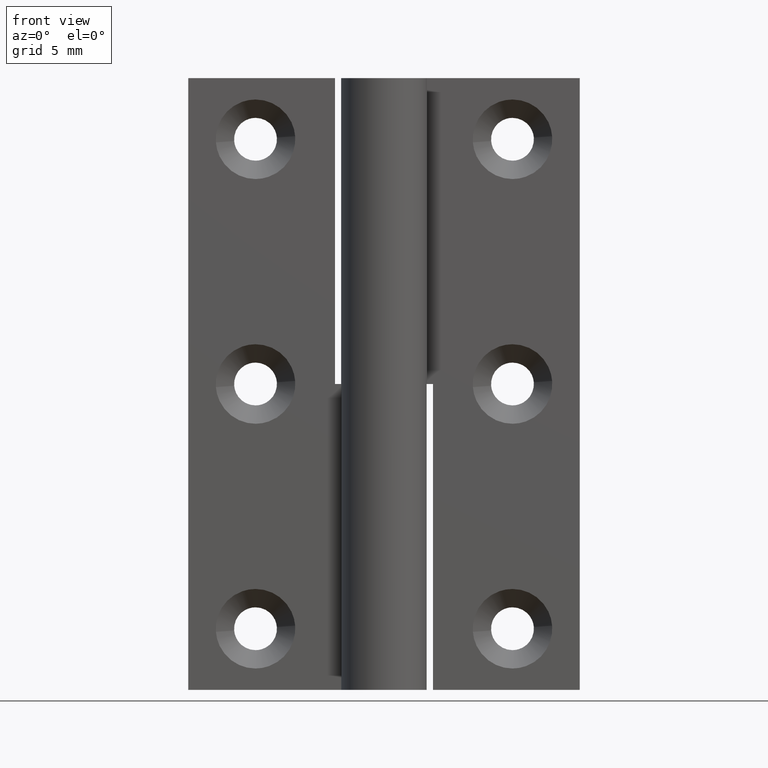
[diagram: clean part render]
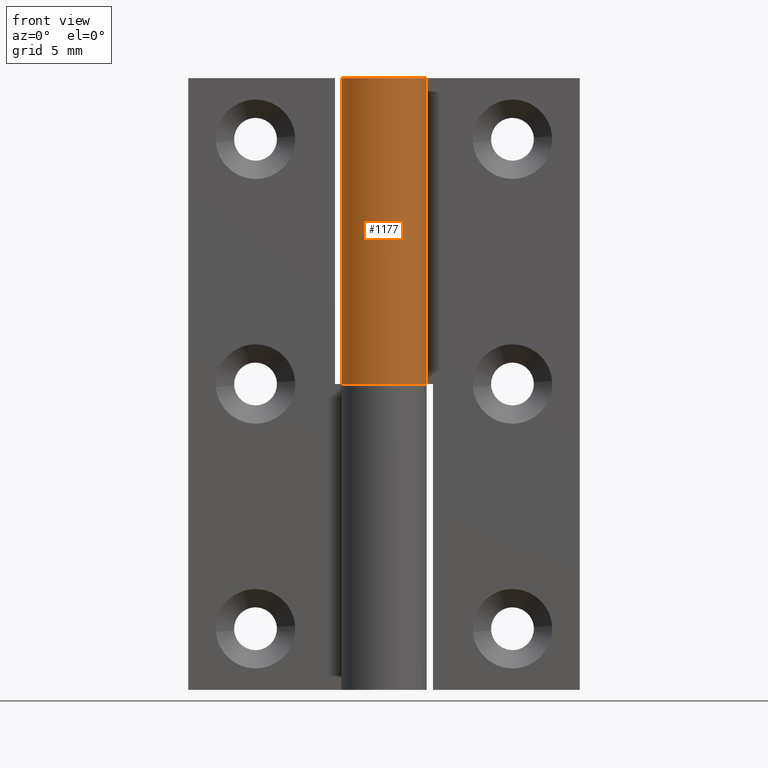
[diagram: same view with one face highlighted and labeled with its STEP entity id]
A machine part, front view. The second image highlights one B-rep face of the part: STEP entity #1177.
In plain terms, the highlighted face is a freeform B-spline surface patch.
Its self-contained STEP definition (entity closure, byte-faithful):
#901=CARTESIAN_POINT('',(2.906458325866725,1.950000000000000,25.0));
#902=VERTEX_POINT('',#901);
#903=CARTESIAN_POINT('',(0.0,3.499999999999950,25.0));
#904=VERTEX_POINT('',#903);
#905=CARTESIAN_POINT('',(2.906458325866724,1.950000000000000,25.0));
#906=CARTESIAN_POINT('',(4.428995672699893,-0.319328896485282,25.0));
#907=CARTESIAN_POINT('',(2.596662639363707,-2.346772919848170,25.0));
#908=CARTESIAN_POINT('',(0.764329606027518,-4.374216943211061,25.0));
#909=CARTESIAN_POINT('',(-1.646966909200061,-3.088284313336452,25.0));
#910=CARTESIAN_POINT('',(-4.058263424427639,-1.802351683461843,25.0));
#911=CARTESIAN_POINT('',(-3.395511382448716,0.848824158269078,25.0));
#912=CARTESIAN_POINT('',(-2.732759340469793,3.500000000000001,25.0));
#913=CARTESIAN_POINT('',(0.0,3.500000000000000,25.0));
#921=(BOUNDED_CURVE()B_SPLINE_CURVE(2,(#905,#906,#907,#908,#909,#910,#911,#912,#913),.UNSPECIFIED.,.F.,.U.)B_SPLINE_CURVE_WITH_KNOTS((3,2,2,2,3),(0.0,0.250000000000000,0.500000000000000,0.750000000000000,1.0),.UNSPECIFIED.)CURVE()GEOMETRIC_REPRESENTATION_ITEM()RATIONAL_B_SPLINE_CURVE((1.0,0.788200858942973,1.0,0.788200858942973,1.0,0.788200858942973,1.0,0.788200858942973,1.0))REPRESENTATION_ITEM(''));
#922=EDGE_CURVE('',#902,#904,#921,.T.);
#971=CARTESIAN_POINT('',(2.906458325866725,1.950000000000000,50.0));
#972=VERTEX_POINT('',#971);
#973=CARTESIAN_POINT('',(0.0,3.500000000000000,50.0));
#974=VERTEX_POINT('',#973);
#975=CARTESIAN_POINT('',(2.906458325866724,1.950000000000000,50.0));
#976=CARTESIAN_POINT('',(4.428995672699894,-0.319328896485281,50.0));
#977=CARTESIAN_POINT('',(2.596662639363708,-2.346772919848170,50.0));
#978=CARTESIAN_POINT('',(0.764329606027520,-4.374216943211062,50.0));
#979=CARTESIAN_POINT('',(-1.646966909200061,-3.088284313336452,50.0));
#980=CARTESIAN_POINT('',(-4.058263424427635,-1.802351683461845,50.0));
#981=CARTESIAN_POINT('',(-3.395511382448717,0.848824158269075,50.0));
#982=CARTESIAN_POINT('',(-2.732759340469795,3.500000000000000,50.0));
#983=CARTESIAN_POINT('',(0.0,3.500000000000000,50.0));
#991=(BOUNDED_CURVE()B_SPLINE_CURVE(2,(#975,#976,#977,#978,#979,#980,#981,#982,#983),.UNSPECIFIED.,.F.,.U.)B_SPLINE_CURVE_WITH_KNOTS((3,2,2,2,3),(0.0,0.250000000000000,0.500000000000000,0.750000000000000,1.0),.UNSPECIFIED.)CURVE()GEOMETRIC_REPRESENTATION_ITEM()RATIONAL_B_SPLINE_CURVE((1.0,0.788200858942973,1.0,0.788200858942973,1.0,0.788200858942973,1.0,0.788200858942973,1.0))REPRESENTATION_ITEM(''));
#992=EDGE_CURVE('',#972,#974,#991,.T.);
#1104=CARTESIAN_POINT('',(2.906458325866725,1.950000000000000,25.0));
#1105=CARTESIAN_POINT('',(2.906458325866725,1.950000000000000,50.0));
#1106=QUASI_UNIFORM_CURVE('',1,(#1104,#1105),.UNSPECIFIED.,.F.,.U.);
#1107=EDGE_CURVE('',#902,#972,#1106,.T.);
#1145=CARTESIAN_POINT('',(2.849404314247117,2.032460344988288,24.375000000000000));
#1146=CARTESIAN_POINT('',(2.849404314247117,2.032460344988288,50.640625000000007));
#1147=CARTESIAN_POINT('',(5.419869493007912,-1.571198928386221,24.375000000000004));
#1148=CARTESIAN_POINT('',(5.419869493007912,-1.571198928386221,50.640625000000007));
#1149=CARTESIAN_POINT('',(1.320557256320388,-3.241315864395131,24.375000000000000));
#1150=CARTESIAN_POINT('',(1.320557256320388,-3.241315864395131,50.640625000000007));
#1151=CARTESIAN_POINT('',(-2.778754980367134,-4.911432800404040,24.375000000000004));
#1152=CARTESIAN_POINT('',(-2.778754980367134,-4.911432800404040,50.640625000000007));
#1153=CARTESIAN_POINT('',(-3.458487237310264,-0.537462584150751,24.375000000000000));
#1154=CARTESIAN_POINT('',(-3.458487237310264,-0.537462584150751,50.640625000000007));
#1155=CARTESIAN_POINT('',(-4.138219494253393,3.836507632102540,24.375000000000004));
#1156=CARTESIAN_POINT('',(-4.138219494253393,3.836507632102540,50.640625000000007));
#1157=CARTESIAN_POINT('',(0.274606835047458,3.489210668065946,24.375000000000000));
#1158=CARTESIAN_POINT('',(0.274606835047458,3.489210668065946,50.640625000000007));
#1166=(BOUNDED_SURFACE()B_SPLINE_SURFACE(1,2,((#1145,#1147,#1149,#1151,#1153,#1155,#1157),(#1146,#1148,#1150,#1152,#1154,#1156,#1158)),.UNSPECIFIED.,.F.,.F.,.U.)B_SPLINE_SURFACE_WITH_KNOTS((2,2),(3,2,2,3),(0.0,26.265625000000011),(0.0,6.777915536387797,13.555831072775600,20.333746609163391),.UNSPECIFIED.)GEOMETRIC_REPRESENTATION_ITEM()RATIONAL_B_SPLINE_SURFACE(((1.0,0.620235491268260,1.0,0.620235491268260,1.0,0.620235491268260,1.0),(1.0,0.620235491268260,1.0,0.620235491268260,1.0,0.620235491268260,1.0)))REPRESENTATION_ITEM('')SURFACE());
#1167=ORIENTED_EDGE('',*,*,#922,.F.);
#1168=ORIENTED_EDGE('',*,*,#1107,.T.);
#1169=ORIENTED_EDGE('',*,*,#992,.T.);
#1170=CARTESIAN_POINT('',(0.0,3.499999999999950,25.0));
#1171=CARTESIAN_POINT('',(0.0,3.500000000000000,50.0));
#1172=QUASI_UNIFORM_CURVE('',1,(#1170,#1171),.UNSPECIFIED.,.F.,.U.);
#1173=EDGE_CURVE('',#904,#974,#1172,.T.);
#1174=ORIENTED_EDGE('',*,*,#1173,.F.);
#1175=EDGE_LOOP('',(#1167,#1168,#1169,#1174));
#1176=FACE_OUTER_BOUND('',#1175,.T.);
#1177=ADVANCED_FACE('',(#1176),#1166,.T.);